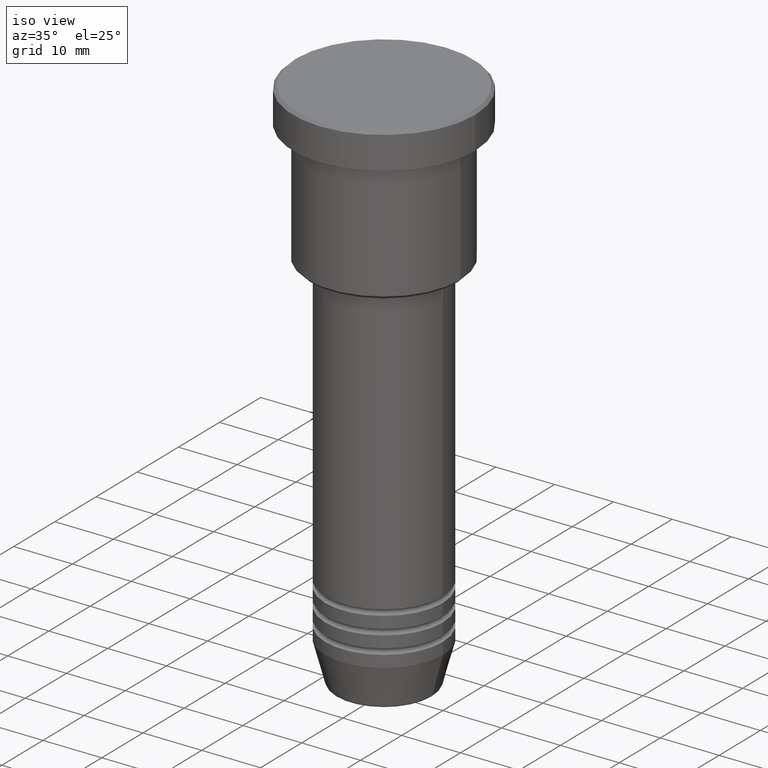
[diagram: clean part render]
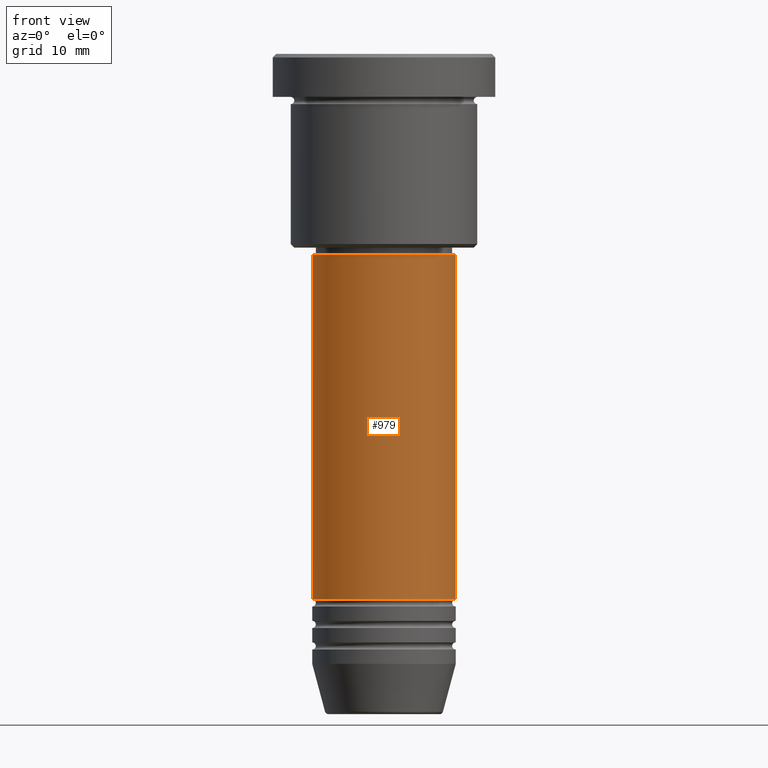
[diagram: tour spotlight — one face highlighted and labeled with its STEP entity id]
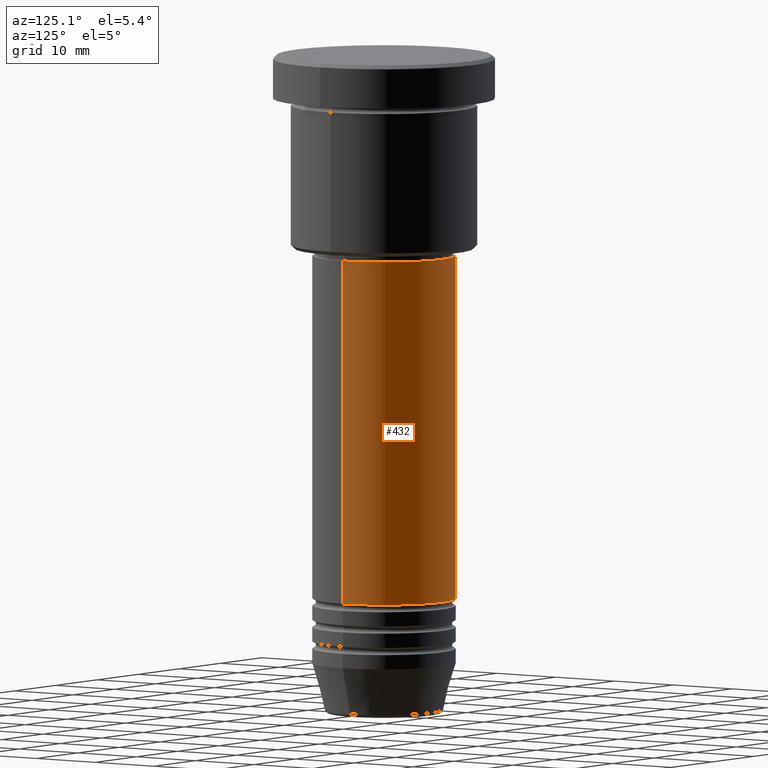
[diagram: tour spotlight — one face highlighted and labeled with its STEP entity id]
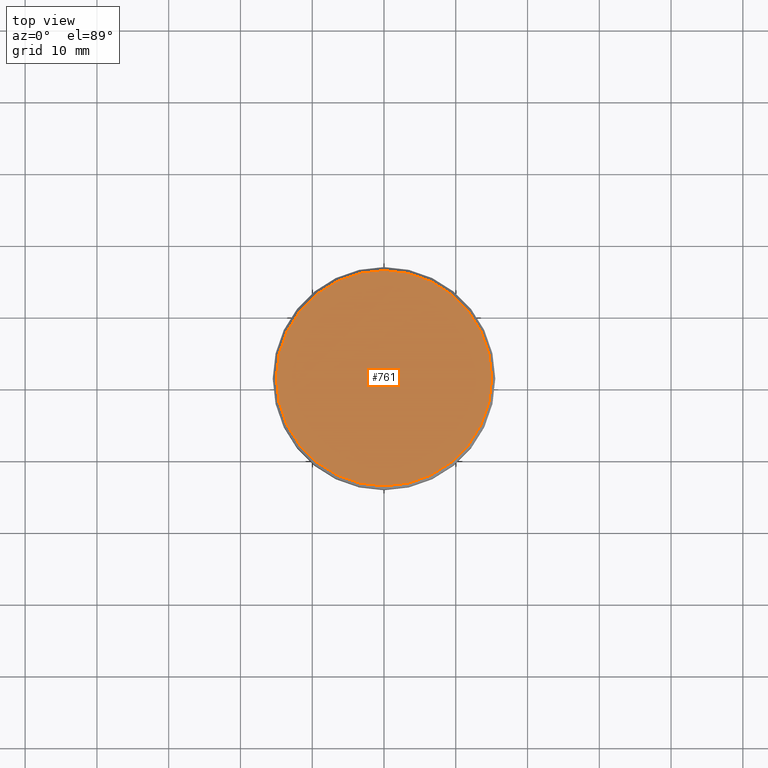
[diagram: tour spotlight — one face highlighted and labeled with its STEP entity id]
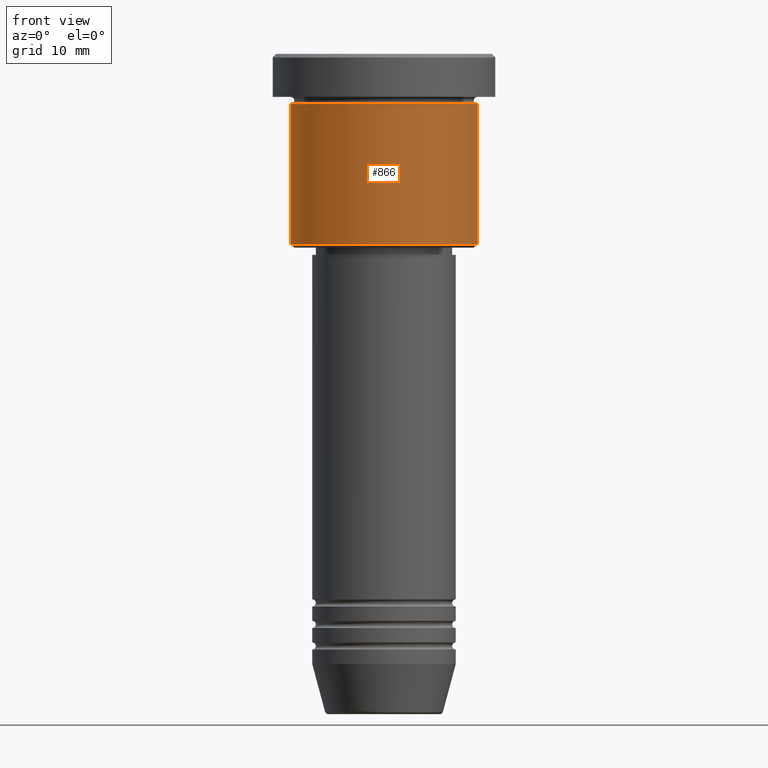
[diagram: tour spotlight — one face highlighted and labeled with its STEP entity id]
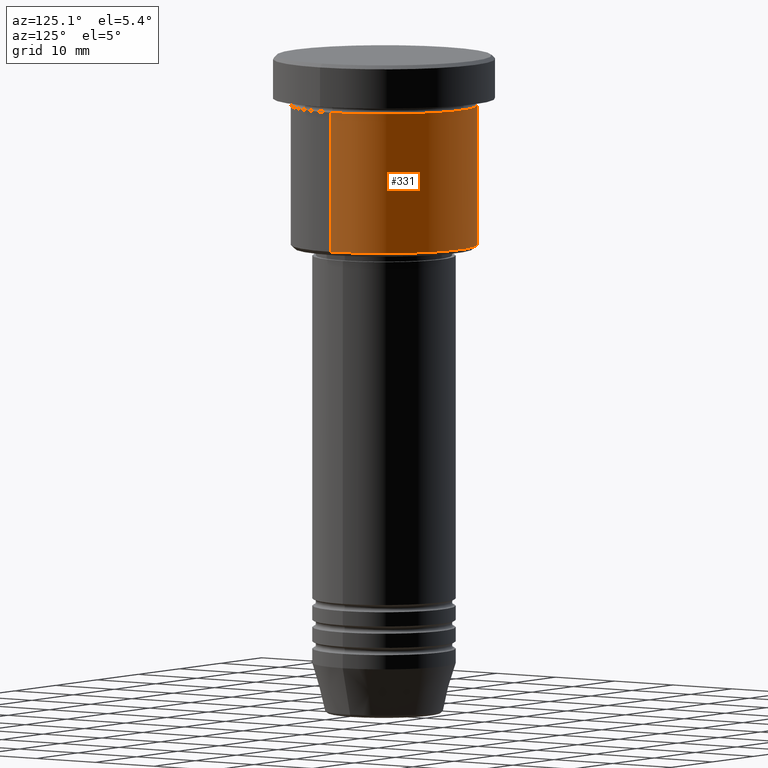
[diagram: tour spotlight — one face highlighted and labeled with its STEP entity id]
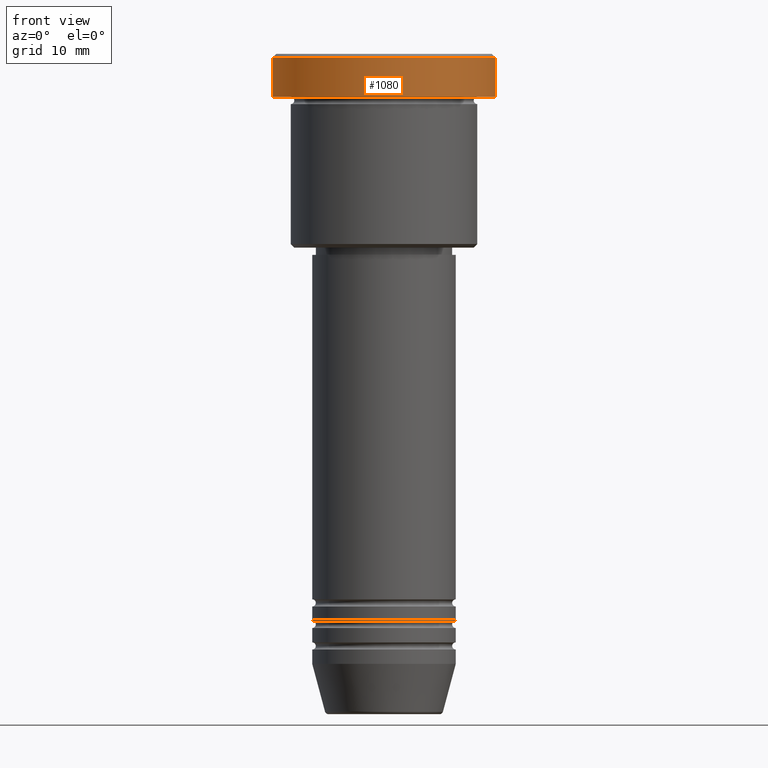
[diagram: tour spotlight — one face highlighted and labeled with its STEP entity id]
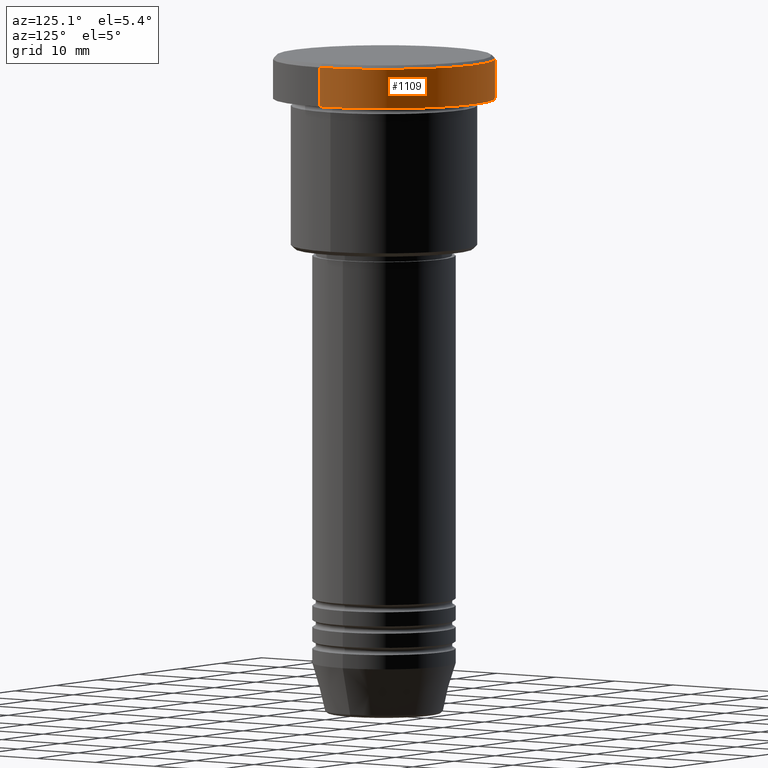
[diagram: tour spotlight — one face highlighted and labeled with its STEP entity id]
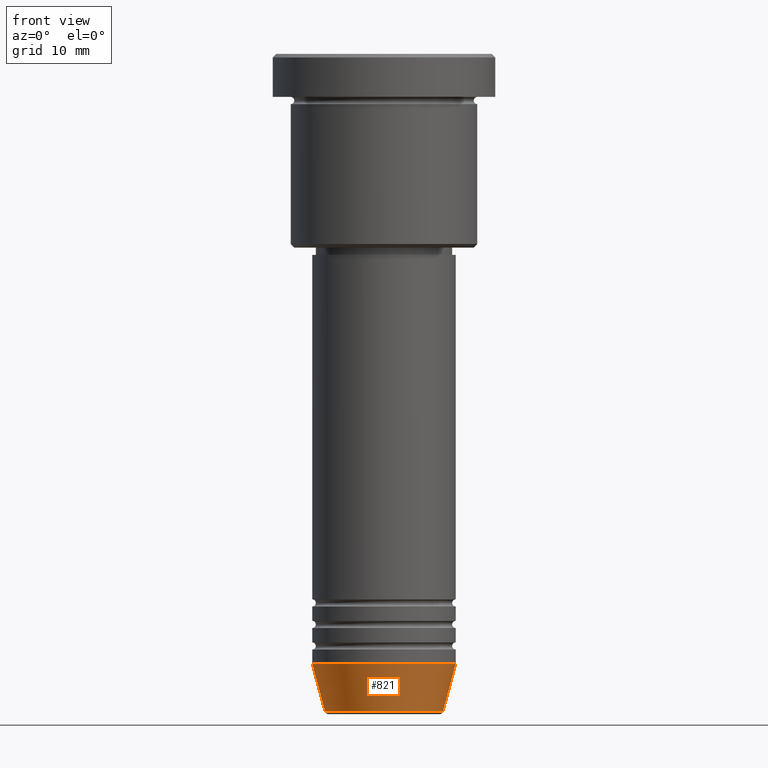
[diagram: tour spotlight — one face highlighted and labeled with its STEP entity id]
A machine part: a face-by-face anatomy tour. The part has 43 B-rep faces; the first image is the clean iso view, then the 8 largest visible faces are spotlighted one at a time (largest first), each with its STEP entity span.

Face 1 — front view, entity #979. In plain terms, the highlighted cylindrical surface (partial cylindrical patch) has radius 10 mm, axis along (-0, -0, 1).
Definition (entity closure, byte-faithful):
#11 = CIRCLE ( 'NONE', #838, 10.00000000000000000 ) ;
#163 = VERTEX_POINT ( 'NONE', #327 ) ;
#215 = VERTEX_POINT ( 'NONE', #256 ) ;
#220 = CARTESIAN_POINT ( 'NONE',  ( 10.00000000000000000, 0.000000000000000000, -27.99999999999996803 ) ) ;
#230 = DIRECTION ( 'NONE',  ( 1.000000000000000000, 0.000000000000000000, 0.000000000000000000 ) ) ;
#240 = EDGE_CURVE ( 'NONE', #163, #576, #11, .T. ) ;
#256 = CARTESIAN_POINT ( 'NONE',  ( 10.00000000000000000, 0.000000000000000000, -75.99999999999997158 ) ) ;
#271 = ORIENTED_EDGE ( 'NONE', *, *, #783, .T. ) ;
#279 = ORIENTED_EDGE ( 'NONE', *, *, #520, .F. ) ;
#327 = CARTESIAN_POINT ( 'NONE',  ( -10.00000000000000000, 1.224646799147353256E-15, -27.99999999999996803 ) ) ;
#363 = CIRCLE ( 'NONE', #1047, 10.00000000000000000 ) ;
#366 = CYLINDRICAL_SURFACE ( 'NONE', #1061, 10.00000000000000000 ) ;
#384 = CARTESIAN_POINT ( 'NONE',  ( 0.000000000000000000, 0.000000000000000000, -75.99999999999997158 ) ) ;
#388 = CARTESIAN_POINT ( 'NONE',  ( 10.00000000000000000, 0.000000000000000000, 0.000000000000000000 ) ) ;
#441 = CARTESIAN_POINT ( 'NONE',  ( 0.000000000000000000, 0.000000000000000000, -27.99999999999996803 ) ) ;
#444 = CARTESIAN_POINT ( 'NONE',  ( -10.00000000000000000, 1.224646799147353256E-15, -75.99999999999997158 ) ) ;
#456 = DIRECTION ( 'NONE',  ( -0.000000000000000000, -0.000000000000000000, 1.000000000000000000 ) ) ;
#482 = CARTESIAN_POINT ( 'NONE',  ( -10.00000000000000000, 1.224646799147353256E-15, 0.000000000000000000 ) ) ;
#520 = EDGE_CURVE ( 'NONE', #746, #163, #550, .T. ) ;
#550 = LINE ( 'NONE', #482, #854 ) ;
#563 = ORIENTED_EDGE ( 'NONE', *, *, #1097, .T. ) ;
#571 = VECTOR ( 'NONE', #1002, 1000.000000000000000 ) ;
#576 = VERTEX_POINT ( 'NONE', #220 ) ;
#717 = DIRECTION ( 'NONE',  ( -0.000000000000000000, -0.000000000000000000, 1.000000000000000000 ) ) ;
#727 = DIRECTION ( 'NONE',  ( 1.000000000000000000, 0.000000000000000000, 0.000000000000000000 ) ) ;
#738 = DIRECTION ( 'NONE',  ( -0.000000000000000000, -0.000000000000000000, 1.000000000000000000 ) ) ;
#746 = VERTEX_POINT ( 'NONE', #444 ) ;
#783 = EDGE_CURVE ( 'NONE', #215, #576, #895, .T. ) ;
#800 = DIRECTION ( 'NONE',  ( 1.000000000000000000, 0.000000000000000000, 0.000000000000000000 ) ) ;
#832 = FACE_OUTER_BOUND ( 'NONE', #1018, .T. ) ;
#838 = AXIS2_PLACEMENT_3D ( 'NONE', #441, #900, #800 ) ;
#854 = VECTOR ( 'NONE', #456, 1000.000000000000000 ) ;
#873 = ORIENTED_EDGE ( 'NONE', *, *, #240, .F. ) ;
#895 = LINE ( 'NONE', #388, #571 ) ;
#900 = DIRECTION ( 'NONE',  ( -0.000000000000000000, -0.000000000000000000, 1.000000000000000000 ) ) ;
#979 = ADVANCED_FACE ( 'NONE', ( #832 ), #366, .T. ) ;
#1002 = DIRECTION ( 'NONE',  ( -0.000000000000000000, -0.000000000000000000, 1.000000000000000000 ) ) ;
#1018 = EDGE_LOOP ( 'NONE', ( #279, #563, #271, #873 ) ) ;
#1047 = AXIS2_PLACEMENT_3D ( 'NONE', #384, #738, #230 ) ;
#1061 = AXIS2_PLACEMENT_3D ( 'NONE', #1183, #717, #727 ) ;
#1097 = EDGE_CURVE ( 'NONE', #746, #215, #363, .T. ) ;
#1183 = CARTESIAN_POINT ( 'NONE',  ( 0.000000000000000000, 0.000000000000000000, 0.000000000000000000 ) ) ;

Face 2 — auxiliary view, entity #432. In plain terms, the highlighted cylindrical surface (partial cylindrical patch) has radius 10 mm, axis along (-0, -0, 1).
Definition (entity closure, byte-faithful):
#13 = CYLINDRICAL_SURFACE ( 'NONE', #753, 10.00000000000000000 ) ;
#37 = EDGE_CURVE ( 'NONE', #576, #163, #1071, .T. ) ;
#51 = AXIS2_PLACEMENT_3D ( 'NONE', #1072, #715, #990 ) ;
#107 = DIRECTION ( 'NONE',  ( -0.000000000000000000, -0.000000000000000000, 1.000000000000000000 ) ) ;
#123 = ORIENTED_EDGE ( 'NONE', *, *, #520, .T. ) ;
#163 = VERTEX_POINT ( 'NONE', #327 ) ;
#170 = DIRECTION ( 'NONE',  ( -0.000000000000000000, -0.000000000000000000, 1.000000000000000000 ) ) ;
#215 = VERTEX_POINT ( 'NONE', #256 ) ;
#220 = CARTESIAN_POINT ( 'NONE',  ( 10.00000000000000000, 0.000000000000000000, -27.99999999999996803 ) ) ;
#256 = CARTESIAN_POINT ( 'NONE',  ( 10.00000000000000000, 0.000000000000000000, -75.99999999999997158 ) ) ;
#266 = ORIENTED_EDGE ( 'NONE', *, *, #783, .F. ) ;
#315 = EDGE_CURVE ( 'NONE', #215, #746, #778, .T. ) ;
#327 = CARTESIAN_POINT ( 'NONE',  ( -10.00000000000000000, 1.224646799147353256E-15, -27.99999999999996803 ) ) ;
#388 = CARTESIAN_POINT ( 'NONE',  ( 10.00000000000000000, 0.000000000000000000, 0.000000000000000000 ) ) ;
#409 = ORIENTED_EDGE ( 'NONE', *, *, #315, .T. ) ;
#432 = ADVANCED_FACE ( 'NONE', ( #466 ), #13, .T. ) ;
#444 = CARTESIAN_POINT ( 'NONE',  ( -10.00000000000000000, 1.224646799147353256E-15, -75.99999999999997158 ) ) ;
#456 = DIRECTION ( 'NONE',  ( -0.000000000000000000, -0.000000000000000000, 1.000000000000000000 ) ) ;
#466 = FACE_OUTER_BOUND ( 'NONE', #694, .T. ) ;
#471 = DIRECTION ( 'NONE',  ( 1.000000000000000000, 0.000000000000000000, 0.000000000000000000 ) ) ;
#482 = CARTESIAN_POINT ( 'NONE',  ( -10.00000000000000000, 1.224646799147353256E-15, 0.000000000000000000 ) ) ;
#520 = EDGE_CURVE ( 'NONE', #746, #163, #550, .T. ) ;
#534 = DIRECTION ( 'NONE',  ( 1.000000000000000000, 0.000000000000000000, 0.000000000000000000 ) ) ;
#550 = LINE ( 'NONE', #482, #854 ) ;
#571 = VECTOR ( 'NONE', #1002, 1000.000000000000000 ) ;
#576 = VERTEX_POINT ( 'NONE', #220 ) ;
#593 = ORIENTED_EDGE ( 'NONE', *, *, #37, .F. ) ;
#694 = EDGE_LOOP ( 'NONE', ( #409, #123, #593, #266 ) ) ;
#715 = DIRECTION ( 'NONE',  ( -0.000000000000000000, -0.000000000000000000, 1.000000000000000000 ) ) ;
#746 = VERTEX_POINT ( 'NONE', #444 ) ;
#753 = AXIS2_PLACEMENT_3D ( 'NONE', #1106, #107, #471 ) ;
#778 = CIRCLE ( 'NONE', #813, 10.00000000000000000 ) ;
#783 = EDGE_CURVE ( 'NONE', #215, #576, #895, .T. ) ;
#805 = CARTESIAN_POINT ( 'NONE',  ( 0.000000000000000000, 0.000000000000000000, -75.99999999999997158 ) ) ;
#813 = AXIS2_PLACEMENT_3D ( 'NONE', #805, #170, #534 ) ;
#854 = VECTOR ( 'NONE', #456, 1000.000000000000000 ) ;
#895 = LINE ( 'NONE', #388, #571 ) ;
#990 = DIRECTION ( 'NONE',  ( 1.000000000000000000, 0.000000000000000000, 0.000000000000000000 ) ) ;
#1002 = DIRECTION ( 'NONE',  ( -0.000000000000000000, -0.000000000000000000, 1.000000000000000000 ) ) ;
#1071 = CIRCLE ( 'NONE', #51, 10.00000000000000000 ) ;
#1072 = CARTESIAN_POINT ( 'NONE',  ( 0.000000000000000000, 0.000000000000000000, -27.99999999999996803 ) ) ;
#1106 = CARTESIAN_POINT ( 'NONE',  ( 0.000000000000000000, 0.000000000000000000, 0.000000000000000000 ) ) ;

Face 3 — top view, entity #761. In plain terms, the highlighted planar face has unit normal (0, -0, 1).
Definition (entity closure, byte-faithful):
#7 = CARTESIAN_POINT ( 'NONE',  ( -15.00000000000001421, 0.000000000000000000, 0.000000000000000000 ) ) ;
#34 = VERTEX_POINT ( 'NONE', #546 ) ;
#77 = DIRECTION ( 'NONE',  ( 0.000000000000000000, -0.000000000000000000, 1.000000000000000000 ) ) ;
#135 = EDGE_LOOP ( 'NONE', ( #202, #298 ) ) ;
#167 = EDGE_CURVE ( 'NONE', #982, #34, #174, .T. ) ;
#174 = CIRCLE ( 'NONE', #364, 15.00000000000001421 ) ;
#202 = ORIENTED_EDGE ( 'NONE', *, *, #167, .T. ) ;
#241 = DIRECTION ( 'NONE',  ( 1.000000000000000000, 0.000000000000000000, 0.000000000000000000 ) ) ;
#260 = PLANE ( 'NONE',  #779 ) ;
#287 = AXIS2_PLACEMENT_3D ( 'NONE', #1160, #814, #377 ) ;
#298 = ORIENTED_EDGE ( 'NONE', *, *, #1068, .T. ) ;
#364 = AXIS2_PLACEMENT_3D ( 'NONE', #674, #765, #241 ) ;
#377 = DIRECTION ( 'NONE',  ( 1.000000000000000000, 0.000000000000000000, 0.000000000000000000 ) ) ;
#459 = CIRCLE ( 'NONE', #287, 15.00000000000001421 ) ;
#546 = CARTESIAN_POINT ( 'NONE',  ( 15.00000000000001421, 1.867586368699714559E-15, 0.000000000000000000 ) ) ;
#674 = CARTESIAN_POINT ( 'NONE',  ( 0.000000000000000000, 0.000000000000000000, 0.000000000000000000 ) ) ;
#761 = ADVANCED_FACE ( 'NONE', ( #1053 ), #260, .T. ) ;
#765 = DIRECTION ( 'NONE',  ( -0.000000000000000000, -0.000000000000000000, 1.000000000000000000 ) ) ;
#779 = AXIS2_PLACEMENT_3D ( 'NONE', #980, #77, #791 ) ;
#791 = DIRECTION ( 'NONE',  ( 1.000000000000000000, 0.000000000000000000, 0.000000000000000000 ) ) ;
#814 = DIRECTION ( 'NONE',  ( -0.000000000000000000, -0.000000000000000000, 1.000000000000000000 ) ) ;
#980 = CARTESIAN_POINT ( 'NONE',  ( 0.000000000000000000, 0.000000000000000000, 0.000000000000000000 ) ) ;
#982 = VERTEX_POINT ( 'NONE', #7 ) ;
#1053 = FACE_OUTER_BOUND ( 'NONE', #135, .T. ) ;
#1068 = EDGE_CURVE ( 'NONE', #34, #982, #459, .T. ) ;
#1160 = CARTESIAN_POINT ( 'NONE',  ( 0.000000000000000000, 0.000000000000000000, 0.000000000000000000 ) ) ;

Face 4 — front view, entity #866. In plain terms, the highlighted cylindrical surface (partial cylindrical patch) has radius 13 mm, axis along (-0, -0, 1).
Definition (entity closure, byte-faithful):
#81 = VERTEX_POINT ( 'NONE', #490 ) ;
#82 = CARTESIAN_POINT ( 'NONE',  ( 0.000000000000000000, 0.000000000000000000, -6.999999999999995559 ) ) ;
#104 = ORIENTED_EDGE ( 'NONE', *, *, #764, .T. ) ;
#131 = CIRCLE ( 'NONE', #405, 13.00000000000000000 ) ;
#173 = VECTOR ( 'NONE', #193, 1000.000000000000000 ) ;
#175 = FACE_OUTER_BOUND ( 'NONE', #299, .T. ) ;
#193 = DIRECTION ( 'NONE',  ( -0.000000000000000000, -0.000000000000000000, 1.000000000000000000 ) ) ;
#217 = ORIENTED_EDGE ( 'NONE', *, *, #957, .F. ) ;
#250 = CIRCLE ( 'NONE', #954, 13.00000000000000000 ) ;
#259 = DIRECTION ( 'NONE',  ( -0.000000000000000000, -0.000000000000000000, 1.000000000000000000 ) ) ;
#290 = CARTESIAN_POINT ( 'NONE',  ( 13.00000000000000000, 0.000000000000000000, -26.49999999999997513 ) ) ;
#299 = EDGE_LOOP ( 'NONE', ( #373, #1137, #104, #217 ) ) ;
#302 = CARTESIAN_POINT ( 'NONE',  ( -13.00000000000000000, 1.592040838891559095E-15, -26.49999999999997513 ) ) ;
#373 = ORIENTED_EDGE ( 'NONE', *, *, #963, .F. ) ;
#374 = DIRECTION ( 'NONE',  ( -0.000000000000000000, -0.000000000000000000, 1.000000000000000000 ) ) ;
#382 = VECTOR ( 'NONE', #600, 1000.000000000000000 ) ;
#393 = VERTEX_POINT ( 'NONE', #290 ) ;
#397 = DIRECTION ( 'NONE',  ( -1.000000000000000000, 0.000000000000000000, 0.000000000000000000 ) ) ;
#405 = AXIS2_PLACEMENT_3D ( 'NONE', #1075, #374, #397 ) ;
#428 = CYLINDRICAL_SURFACE ( 'NONE', #695, 13.00000000000000000 ) ;
#443 = VERTEX_POINT ( 'NONE', #302 ) ;
#449 = LINE ( 'NONE', #809, #382 ) ;
#490 = CARTESIAN_POINT ( 'NONE',  ( 13.00000000000000000, 0.000000000000000000, -6.999999999999995559 ) ) ;
#600 = DIRECTION ( 'NONE',  ( -0.000000000000000000, -0.000000000000000000, 1.000000000000000000 ) ) ;
#605 = CARTESIAN_POINT ( 'NONE',  ( -13.00000000000000000, 1.592040838891559095E-15, -6.999999999999995559 ) ) ;
#641 = LINE ( 'NONE', #999, #173 ) ;
#695 = AXIS2_PLACEMENT_3D ( 'NONE', #881, #259, #870 ) ;
#764 = EDGE_CURVE ( 'NONE', #393, #81, #449, .T. ) ;
#809 = CARTESIAN_POINT ( 'NONE',  ( 13.00000000000000000, 0.000000000000000000, 0.000000000000000000 ) ) ;
#866 = ADVANCED_FACE ( 'NONE', ( #175 ), #428, .T. ) ;
#870 = DIRECTION ( 'NONE',  ( 1.000000000000000000, 0.000000000000000000, 0.000000000000000000 ) ) ;
#881 = CARTESIAN_POINT ( 'NONE',  ( 0.000000000000000000, 0.000000000000000000, 0.000000000000000000 ) ) ;
#920 = DIRECTION ( 'NONE',  ( -0.000000000000000000, -0.000000000000000000, 1.000000000000000000 ) ) ;
#954 = AXIS2_PLACEMENT_3D ( 'NONE', #82, #920, #1170 ) ;
#957 = EDGE_CURVE ( 'NONE', #1019, #81, #250, .T. ) ;
#963 = EDGE_CURVE ( 'NONE', #443, #1019, #641, .T. ) ;
#999 = CARTESIAN_POINT ( 'NONE',  ( -13.00000000000000000, 1.592040838891559095E-15, 0.000000000000000000 ) ) ;
#1019 = VERTEX_POINT ( 'NONE', #605 ) ;
#1075 = CARTESIAN_POINT ( 'NONE',  ( 0.000000000000000000, 0.000000000000000000, -26.49999999999997513 ) ) ;
#1137 = ORIENTED_EDGE ( 'NONE', *, *, #1175, .T. ) ;
#1170 = DIRECTION ( 'NONE',  ( 1.000000000000000000, 0.000000000000000000, 0.000000000000000000 ) ) ;
#1175 = EDGE_CURVE ( 'NONE', #443, #393, #131, .T. ) ;

Face 5 — auxiliary view, entity #331. In plain terms, the highlighted cylindrical surface (partial cylindrical patch) has radius 13 mm, axis along (-0, -0, 1).
Definition (entity closure, byte-faithful):
#81 = VERTEX_POINT ( 'NONE', #490 ) ;
#118 = ORIENTED_EDGE ( 'NONE', *, *, #963, .T. ) ;
#136 = DIRECTION ( 'NONE',  ( -0.000000000000000000, -0.000000000000000000, 1.000000000000000000 ) ) ;
#141 = DIRECTION ( 'NONE',  ( 1.000000000000000000, 0.000000000000000000, 0.000000000000000000 ) ) ;
#173 = VECTOR ( 'NONE', #193, 1000.000000000000000 ) ;
#193 = DIRECTION ( 'NONE',  ( -0.000000000000000000, -0.000000000000000000, 1.000000000000000000 ) ) ;
#210 = CIRCLE ( 'NONE', #892, 13.00000000000000000 ) ;
#231 = AXIS2_PLACEMENT_3D ( 'NONE', #251, #1078, #1151 ) ;
#246 = ORIENTED_EDGE ( 'NONE', *, *, #853, .F. ) ;
#251 = CARTESIAN_POINT ( 'NONE',  ( 0.000000000000000000, 0.000000000000000000, 0.000000000000000000 ) ) ;
#265 = FACE_OUTER_BOUND ( 'NONE', #478, .T. ) ;
#277 = DIRECTION ( 'NONE',  ( -0.000000000000000000, -0.000000000000000000, 1.000000000000000000 ) ) ;
#290 = CARTESIAN_POINT ( 'NONE',  ( 13.00000000000000000, 0.000000000000000000, -26.49999999999997513 ) ) ;
#302 = CARTESIAN_POINT ( 'NONE',  ( -13.00000000000000000, 1.592040838891559095E-15, -26.49999999999997513 ) ) ;
#331 = ADVANCED_FACE ( 'NONE', ( #265 ), #360, .T. ) ;
#344 = ORIENTED_EDGE ( 'NONE', *, *, #764, .F. ) ;
#360 = CYLINDRICAL_SURFACE ( 'NONE', #231, 13.00000000000000000 ) ;
#382 = VECTOR ( 'NONE', #600, 1000.000000000000000 ) ;
#393 = VERTEX_POINT ( 'NONE', #290 ) ;
#395 = EDGE_CURVE ( 'NONE', #393, #443, #455, .T. ) ;
#443 = VERTEX_POINT ( 'NONE', #302 ) ;
#449 = LINE ( 'NONE', #809, #382 ) ;
#455 = CIRCLE ( 'NONE', #1118, 13.00000000000000000 ) ;
#478 = EDGE_LOOP ( 'NONE', ( #839, #118, #246, #344 ) ) ;
#490 = CARTESIAN_POINT ( 'NONE',  ( 13.00000000000000000, 0.000000000000000000, -6.999999999999995559 ) ) ;
#600 = DIRECTION ( 'NONE',  ( -0.000000000000000000, -0.000000000000000000, 1.000000000000000000 ) ) ;
#605 = CARTESIAN_POINT ( 'NONE',  ( -13.00000000000000000, 1.592040838891559095E-15, -6.999999999999995559 ) ) ;
#641 = LINE ( 'NONE', #999, #173 ) ;
#764 = EDGE_CURVE ( 'NONE', #393, #81, #449, .T. ) ;
#809 = CARTESIAN_POINT ( 'NONE',  ( 13.00000000000000000, 0.000000000000000000, 0.000000000000000000 ) ) ;
#824 = CARTESIAN_POINT ( 'NONE',  ( 0.000000000000000000, 0.000000000000000000, -26.49999999999997513 ) ) ;
#839 = ORIENTED_EDGE ( 'NONE', *, *, #395, .T. ) ;
#843 = CARTESIAN_POINT ( 'NONE',  ( 0.000000000000000000, 0.000000000000000000, -6.999999999999995559 ) ) ;
#844 = DIRECTION ( 'NONE',  ( -1.000000000000000000, 0.000000000000000000, 0.000000000000000000 ) ) ;
#853 = EDGE_CURVE ( 'NONE', #81, #1019, #210, .T. ) ;
#892 = AXIS2_PLACEMENT_3D ( 'NONE', #843, #136, #141 ) ;
#963 = EDGE_CURVE ( 'NONE', #443, #1019, #641, .T. ) ;
#999 = CARTESIAN_POINT ( 'NONE',  ( -13.00000000000000000, 1.592040838891559095E-15, 0.000000000000000000 ) ) ;
#1019 = VERTEX_POINT ( 'NONE', #605 ) ;
#1078 = DIRECTION ( 'NONE',  ( -0.000000000000000000, -0.000000000000000000, 1.000000000000000000 ) ) ;
#1118 = AXIS2_PLACEMENT_3D ( 'NONE', #824, #277, #844 ) ;
#1151 = DIRECTION ( 'NONE',  ( 1.000000000000000000, 0.000000000000000000, 0.000000000000000000 ) ) ;

Face 6 — front view, entity #1080. In plain terms, the highlighted cylindrical surface (partial cylindrical patch) has radius 15.5 mm, axis along (-0, -0, 1).
Definition (entity closure, byte-faithful):
#16 = EDGE_CURVE ( 'NONE', #400, #662, #489, .T. ) ;
#70 = DIRECTION ( 'NONE',  ( 1.000000000000000000, 0.000000000000000000, 0.000000000000000000 ) ) ;
#76 = DIRECTION ( 'NONE',  ( 1.000000000000000000, 0.000000000000000000, 0.000000000000000000 ) ) ;
#96 = CARTESIAN_POINT ( 'NONE',  ( -15.50000000000000000, 1.898202538678397557E-15, -5.999999999999995559 ) ) ;
#156 = ORIENTED_EDGE ( 'NONE', *, *, #1156, .T. ) ;
#204 = ORIENTED_EDGE ( 'NONE', *, *, #720, .T. ) ;
#233 = AXIS2_PLACEMENT_3D ( 'NONE', #624, #539, #76 ) ;
#235 = LINE ( 'NONE', #1139, #362 ) ;
#263 = CYLINDRICAL_SURFACE ( 'NONE', #233, 15.50000000000000000 ) ;
#362 = VECTOR ( 'NONE', #590, 1000.000000000000000 ) ;
#399 = CARTESIAN_POINT ( 'NONE',  ( -15.50000000000000000, 1.898202538678397557E-15, 0.000000000000000000 ) ) ;
#400 = VERTEX_POINT ( 'NONE', #96 ) ;
#413 = CARTESIAN_POINT ( 'NONE',  ( 15.50000000000000000, 0.000000000000000000, -5.999999999999995559 ) ) ;
#422 = VECTOR ( 'NONE', #1121, 1000.000000000000000 ) ;
#434 = DIRECTION ( 'NONE',  ( 0.000000000000000000, 0.000000000000000000, -1.000000000000000000 ) ) ;
#489 = LINE ( 'NONE', #399, #422 ) ;
#503 = ORIENTED_EDGE ( 'NONE', *, *, #652, .T. ) ;
#523 = ORIENTED_EDGE ( 'NONE', *, *, #16, .F. ) ;
#539 = DIRECTION ( 'NONE',  ( -0.000000000000000000, -0.000000000000000000, 1.000000000000000000 ) ) ;
#590 = DIRECTION ( 'NONE',  ( -0.000000000000000000, -0.000000000000000000, 1.000000000000000000 ) ) ;
#601 = CARTESIAN_POINT ( 'NONE',  ( 0.000000000000000000, 0.000000000000000000, -5.999999999999995559 ) ) ;
#611 = VERTEX_POINT ( 'NONE', #413 ) ;
#624 = CARTESIAN_POINT ( 'NONE',  ( 0.000000000000000000, 0.000000000000000000, 0.000000000000000000 ) ) ;
#625 = CIRCLE ( 'NONE', #731, 15.50000000000000000 ) ;
#629 = DIRECTION ( 'NONE',  ( 1.000000000000000000, 0.000000000000000000, 0.000000000000000000 ) ) ;
#652 = EDGE_CURVE ( 'NONE', #611, #845, #235, .T. ) ;
#662 = VERTEX_POINT ( 'NONE', #867 ) ;
#705 = FACE_OUTER_BOUND ( 'NONE', #831, .T. ) ;
#720 = EDGE_CURVE ( 'NONE', #845, #662, #625, .T. ) ;
#731 = AXIS2_PLACEMENT_3D ( 'NONE', #882, #434, #70 ) ;
#831 = EDGE_LOOP ( 'NONE', ( #523, #156, #503, #204 ) ) ;
#845 = VERTEX_POINT ( 'NONE', #1009 ) ;
#867 = CARTESIAN_POINT ( 'NONE',  ( -15.50000000000000000, 1.898202538678397557E-15, -0.4999999999999987232 ) ) ;
#882 = CARTESIAN_POINT ( 'NONE',  ( 0.000000000000000000, 0.000000000000000000, -0.4999999999999987232 ) ) ;
#896 = DIRECTION ( 'NONE',  ( -0.000000000000000000, -0.000000000000000000, 1.000000000000000000 ) ) ;
#910 = AXIS2_PLACEMENT_3D ( 'NONE', #601, #896, #629 ) ;
#1009 = CARTESIAN_POINT ( 'NONE',  ( 15.50000000000000000, 0.000000000000000000, -0.4999999999999987232 ) ) ;
#1029 = CIRCLE ( 'NONE', #910, 15.50000000000000000 ) ;
#1080 = ADVANCED_FACE ( 'NONE', ( #705 ), #263, .T. ) ;
#1121 = DIRECTION ( 'NONE',  ( -0.000000000000000000, -0.000000000000000000, 1.000000000000000000 ) ) ;
#1139 = CARTESIAN_POINT ( 'NONE',  ( 15.50000000000000000, 0.000000000000000000, 0.000000000000000000 ) ) ;
#1156 = EDGE_CURVE ( 'NONE', #400, #611, #1029, .T. ) ;

Face 7 — auxiliary view, entity #1109. In plain terms, the highlighted cylindrical surface (partial cylindrical patch) has radius 15.5 mm, axis along (-0, -0, 1).
Definition (entity closure, byte-faithful):
#10 = AXIS2_PLACEMENT_3D ( 'NONE', #772, #1042, #1031 ) ;
#16 = EDGE_CURVE ( 'NONE', #400, #662, #489, .T. ) ;
#96 = CARTESIAN_POINT ( 'NONE',  ( -15.50000000000000000, 1.898202538678397557E-15, -5.999999999999995559 ) ) ;
#105 = DIRECTION ( 'NONE',  ( 1.000000000000000000, 0.000000000000000000, 0.000000000000000000 ) ) ;
#133 = CARTESIAN_POINT ( 'NONE',  ( 0.000000000000000000, 0.000000000000000000, -5.999999999999995559 ) ) ;
#151 = AXIS2_PLACEMENT_3D ( 'NONE', #133, #1049, #770 ) ;
#235 = LINE ( 'NONE', #1139, #362 ) ;
#309 = AXIS2_PLACEMENT_3D ( 'NONE', #452, #370, #105 ) ;
#362 = VECTOR ( 'NONE', #590, 1000.000000000000000 ) ;
#370 = DIRECTION ( 'NONE',  ( 0.000000000000000000, 0.000000000000000000, -1.000000000000000000 ) ) ;
#399 = CARTESIAN_POINT ( 'NONE',  ( -15.50000000000000000, 1.898202538678397557E-15, 0.000000000000000000 ) ) ;
#400 = VERTEX_POINT ( 'NONE', #96 ) ;
#413 = CARTESIAN_POINT ( 'NONE',  ( 15.50000000000000000, 0.000000000000000000, -5.999999999999995559 ) ) ;
#416 = CYLINDRICAL_SURFACE ( 'NONE', #10, 15.50000000000000000 ) ;
#422 = VECTOR ( 'NONE', #1121, 1000.000000000000000 ) ;
#452 = CARTESIAN_POINT ( 'NONE',  ( 0.000000000000000000, 0.000000000000000000, -0.4999999999999987232 ) ) ;
#467 = EDGE_LOOP ( 'NONE', ( #790, #707, #786, #1110 ) ) ;
#489 = LINE ( 'NONE', #399, #422 ) ;
#590 = DIRECTION ( 'NONE',  ( -0.000000000000000000, -0.000000000000000000, 1.000000000000000000 ) ) ;
#611 = VERTEX_POINT ( 'NONE', #413 ) ;
#652 = EDGE_CURVE ( 'NONE', #611, #845, #235, .T. ) ;
#662 = VERTEX_POINT ( 'NONE', #867 ) ;
#707 = ORIENTED_EDGE ( 'NONE', *, *, #16, .T. ) ;
#770 = DIRECTION ( 'NONE',  ( 1.000000000000000000, 0.000000000000000000, 0.000000000000000000 ) ) ;
#772 = CARTESIAN_POINT ( 'NONE',  ( 0.000000000000000000, 0.000000000000000000, 0.000000000000000000 ) ) ;
#786 = ORIENTED_EDGE ( 'NONE', *, *, #941, .T. ) ;
#790 = ORIENTED_EDGE ( 'NONE', *, *, #1112, .T. ) ;
#845 = VERTEX_POINT ( 'NONE', #1009 ) ;
#865 = FACE_OUTER_BOUND ( 'NONE', #467, .T. ) ;
#867 = CARTESIAN_POINT ( 'NONE',  ( -15.50000000000000000, 1.898202538678397557E-15, -0.4999999999999987232 ) ) ;
#941 = EDGE_CURVE ( 'NONE', #662, #845, #984, .T. ) ;
#984 = CIRCLE ( 'NONE', #309, 15.50000000000000000 ) ;
#1009 = CARTESIAN_POINT ( 'NONE',  ( 15.50000000000000000, 0.000000000000000000, -0.4999999999999987232 ) ) ;
#1031 = DIRECTION ( 'NONE',  ( 1.000000000000000000, 0.000000000000000000, 0.000000000000000000 ) ) ;
#1042 = DIRECTION ( 'NONE',  ( -0.000000000000000000, -0.000000000000000000, 1.000000000000000000 ) ) ;
#1049 = DIRECTION ( 'NONE',  ( -0.000000000000000000, -0.000000000000000000, 1.000000000000000000 ) ) ;
#1109 = ADVANCED_FACE ( 'NONE', ( #865 ), #416, .T. ) ;
#1110 = ORIENTED_EDGE ( 'NONE', *, *, #652, .F. ) ;
#1112 = EDGE_CURVE ( 'NONE', #611, #400, #1136, .T. ) ;
#1121 = DIRECTION ( 'NONE',  ( -0.000000000000000000, -0.000000000000000000, 1.000000000000000000 ) ) ;
#1136 = CIRCLE ( 'NONE', #151, 15.50000000000000000 ) ;
#1139 = CARTESIAN_POINT ( 'NONE',  ( 15.50000000000000000, 0.000000000000000000, 0.000000000000000000 ) ) ;

Face 8 — front view, entity #821. In plain terms, the highlighted conical surface has half-angle 15 deg.
Definition (entity closure, byte-faithful):
#22 = CARTESIAN_POINT ( 'NONE',  ( 0.000000000000000000, 0.000000000000000000, -91.62940952255125637 ) ) ;
#46 = DIRECTION ( 'NONE',  ( -0.000000000000000000, -0.000000000000000000, 1.000000000000000000 ) ) ;
#59 = CARTESIAN_POINT ( 'NONE',  ( 0.000000000000000000, 0.000000000000000000, -84.99999999999998579 ) ) ;
#78 = DIRECTION ( 'NONE',  ( 1.000000000000000000, 0.000000000000000000, 0.000000000000000000 ) ) ;
#97 = ORIENTED_EDGE ( 'NONE', *, *, #676, .T. ) ;
#101 = CARTESIAN_POINT ( 'NONE',  ( 0.000000000000000000, 0.000000000000000000, -84.99999999999998579 ) ) ;
#149 = AXIS2_PLACEMENT_3D ( 'NONE', #22, #46, #682 ) ;
#171 = CIRCLE ( 'NONE', #149, 8.223655072137187716 ) ;
#229 = VERTEX_POINT ( 'NONE', #430 ) ;
#248 = AXIS2_PLACEMENT_3D ( 'NONE', #101, #1099, #554 ) ;
#269 = AXIS2_PLACEMENT_3D ( 'NONE', #59, #897, #78 ) ;
#281 = FACE_OUTER_BOUND ( 'NONE', #935, .T. ) ;
#282 = EDGE_CURVE ( 'NONE', #529, #372, #781, .T. ) ;
#322 = CONICAL_SURFACE ( 'NONE', #248, 10.00000000000000000, 0.2617993877991500740 ) ;
#338 = VECTOR ( 'NONE', #567, 1000.000000000000000 ) ;
#371 = CARTESIAN_POINT ( 'NONE',  ( 10.00000000000000000, 0.000000000000000000, -84.99999999999998579 ) ) ;
#372 = VERTEX_POINT ( 'NONE', #1010 ) ;
#424 = VECTOR ( 'NONE', #1159, 1000.000000000000000 ) ;
#430 = CARTESIAN_POINT ( 'NONE',  ( -8.223655072137187716, 1.115877042642911856E-15, -91.62940952255125637 ) ) ;
#468 = EDGE_CURVE ( 'NONE', #745, #372, #917, .T. ) ;
#529 = VERTEX_POINT ( 'NONE', #673 ) ;
#554 = DIRECTION ( 'NONE',  ( 1.000000000000000000, 0.000000000000000000, 0.000000000000000000 ) ) ;
#567 = DIRECTION ( 'NONE',  ( 0.2588190451025213501, 0.000000000000000000, 0.9659258262890680902 ) ) ;
#570 = CARTESIAN_POINT ( 'NONE',  ( -10.00000000000000000, 1.224646799147353256E-15, -84.99999999999998579 ) ) ;
#583 = ORIENTED_EDGE ( 'NONE', *, *, #282, .F. ) ;
#626 = CARTESIAN_POINT ( 'NONE',  ( 8.223655072137187716, 0.000000000000000000, -91.62940952255125637 ) ) ;
#645 = ORIENTED_EDGE ( 'NONE', *, *, #468, .T. ) ;
#673 = CARTESIAN_POINT ( 'NONE',  ( -10.00000000000000000, 1.224646799147353256E-15, -84.99999999999998579 ) ) ;
#676 = EDGE_CURVE ( 'NONE', #229, #745, #171, .T. ) ;
#682 = DIRECTION ( 'NONE',  ( 1.000000000000000000, 0.000000000000000000, 0.000000000000000000 ) ) ;
#745 = VERTEX_POINT ( 'NONE', #626 ) ;
#781 = CIRCLE ( 'NONE', #269, 10.00000000000000000 ) ;
#821 = ADVANCED_FACE ( 'NONE', ( #281 ), #322, .T. ) ;
#897 = DIRECTION ( 'NONE',  ( -0.000000000000000000, -0.000000000000000000, 1.000000000000000000 ) ) ;
#917 = LINE ( 'NONE', #371, #338 ) ;
#935 = EDGE_LOOP ( 'NONE', ( #1090, #97, #645, #583 ) ) ;
#1010 = CARTESIAN_POINT ( 'NONE',  ( 10.00000000000000000, 0.000000000000000000, -84.99999999999998579 ) ) ;
#1039 = EDGE_CURVE ( 'NONE', #229, #529, #1108, .T. ) ;
#1090 = ORIENTED_EDGE ( 'NONE', *, *, #1039, .F. ) ;
#1099 = DIRECTION ( 'NONE',  ( -0.000000000000000000, -0.000000000000000000, 1.000000000000000000 ) ) ;
#1108 = LINE ( 'NONE', #570, #424 ) ;
#1159 = DIRECTION ( 'NONE',  ( -0.2588190451025213501, 3.169619151431772337E-17, 0.9659258262890680902 ) ) ;